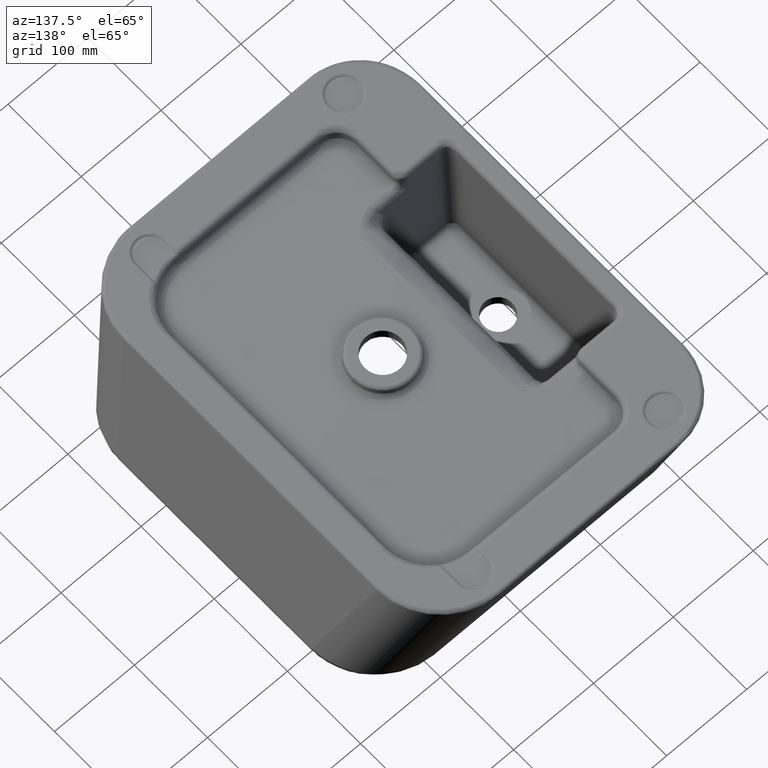
[diagram: clean part render]
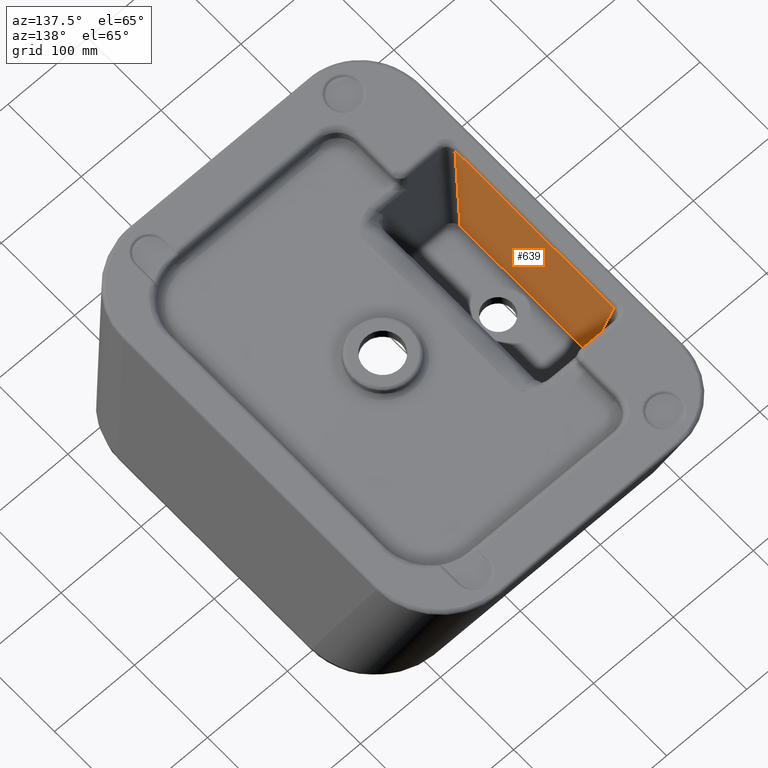
[diagram: same view with one face highlighted and labeled with its STEP entity id]
A machine part, auxiliary view. The second image highlights one B-rep face of the part: STEP entity #639.
In plain terms, the highlighted planar face has unit normal (-0.9945, 0, -0.1046).
Its self-contained STEP definition (entity closure, byte-faithful):
#270=PLANE('',#3232);
#494=LINE('',#5461,#570);
#495=LINE('',#5464,#571);
#496=LINE('',#5466,#572);
#497=LINE('',#5468,#573);
#570=VECTOR('',#3541,1.);
#571=VECTOR('',#3542,1.);
#572=VECTOR('',#3543,1.);
#573=VECTOR('',#3544,1.);
#639=ADVANCED_FACE('',(#876),#270,.F.);
#876=FACE_OUTER_BOUND('',#1089,.T.);
#1089=EDGE_LOOP('',(#1465,#1466,#1467,#1468));
#1465=ORIENTED_EDGE('',*,*,#2651,.F.);
#1466=ORIENTED_EDGE('',*,*,#2652,.T.);
#1467=ORIENTED_EDGE('',*,*,#2653,.F.);
#1468=ORIENTED_EDGE('',*,*,#2654,.F.);
#2357=VERTEX_POINT('',#5462);
#2358=VERTEX_POINT('',#5463);
#2359=VERTEX_POINT('',#5465);
#2360=VERTEX_POINT('',#5467);
#2651=EDGE_CURVE('',#2357,#2358,#494,.T.);
#2652=EDGE_CURVE('',#2357,#2359,#495,.T.);
#2653=EDGE_CURVE('',#2360,#2359,#496,.T.);
#2654=EDGE_CURVE('',#2358,#2360,#497,.T.);
#3232=AXIS2_PLACEMENT_3D('',#5469,#3545,#3546);
#3541=DIRECTION('',(0.,1.,0.));
#3542=DIRECTION('',(0.103054433416307,0.170760947960894,-0.979908405109754));
#3543=DIRECTION('',(0.,-1.,0.));
#3544=DIRECTION('',(0.103054433416307,-0.170760947960894,-0.979908405109754));
#3545=DIRECTION('',(-0.994515361597699,0.,-0.104590609263919));
#3546=DIRECTION('',(-0.104590609263919,0.,0.994515361597699));
#5461=CARTESIAN_POINT('',(73.5016292067174,-718.131412768415,219.628111976405));
#5462=CARTESIAN_POINT('',(73.5016292067174,-936.397940150219,219.628111976405));
#5463=CARTESIAN_POINT('',(73.5016292067174,-719.072608446704,219.628111976405));
#5464=CARTESIAN_POINT('',(85.9734153755578,-915.73222050715,101.038278541404));
#5465=CARTESIAN_POINT('',(85.6287901511774,-916.303263673907,104.315198735792));
#5466=CARTESIAN_POINT('',(85.6287901511774,-914.882874325626,104.315198735792));
#5467=CARTESIAN_POINT('',(85.6287901511774,-739.167284923016,104.315198735792));
#5468=CARTESIAN_POINT('',(85.9734153755578,-739.738328089773,101.038278541404));
#5469=CARTESIAN_POINT('',(72.9336165052296,-1081.23403715853,225.02914521627));